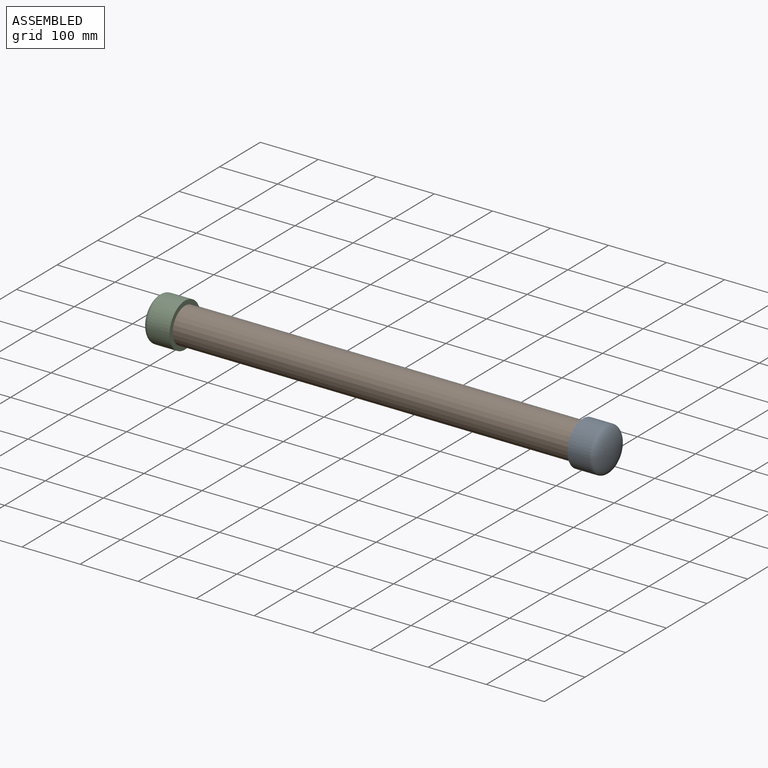
[diagram: assembled view]
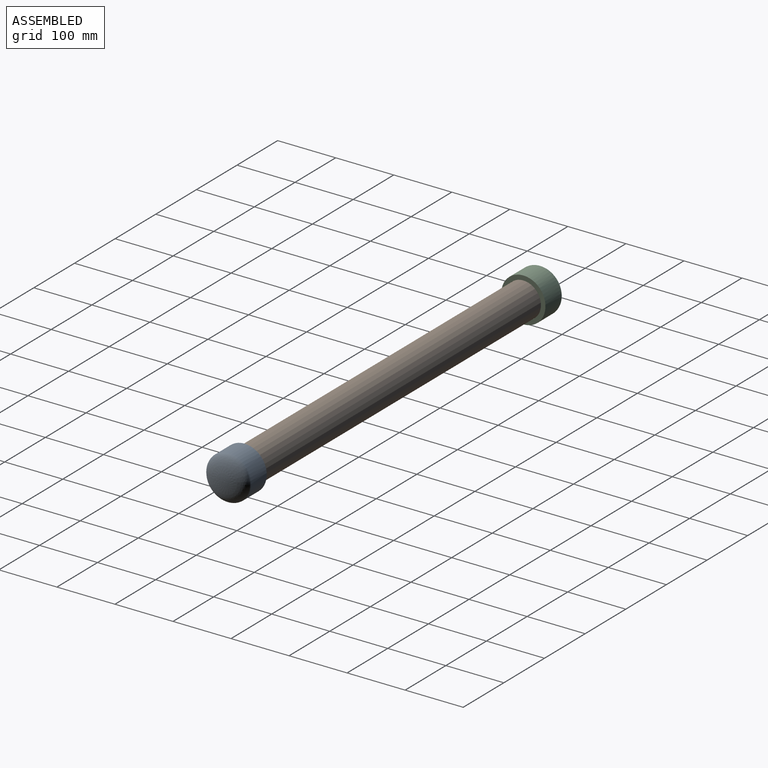
[diagram: assembled view, second angle]
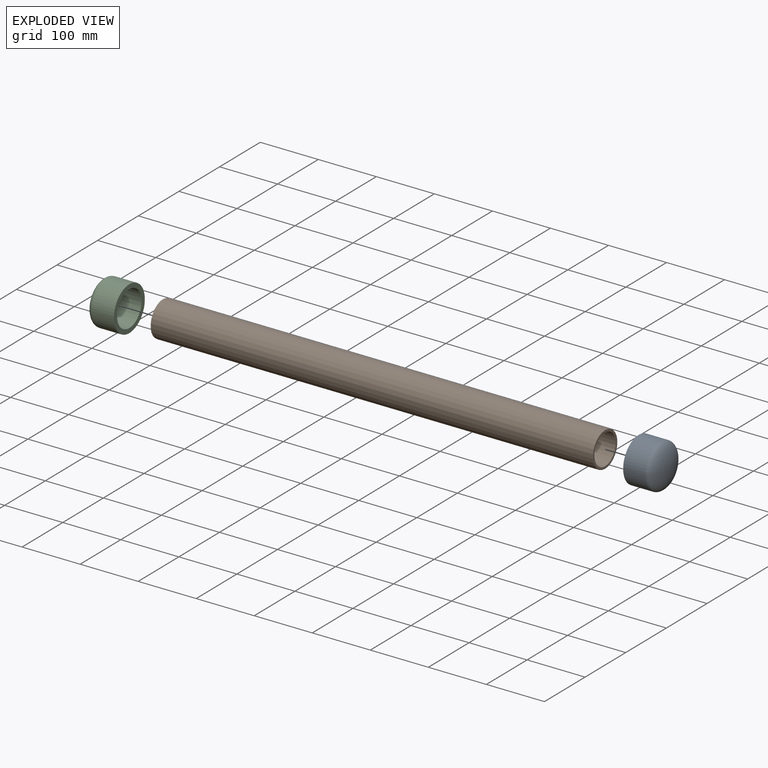
[diagram: exploded view]
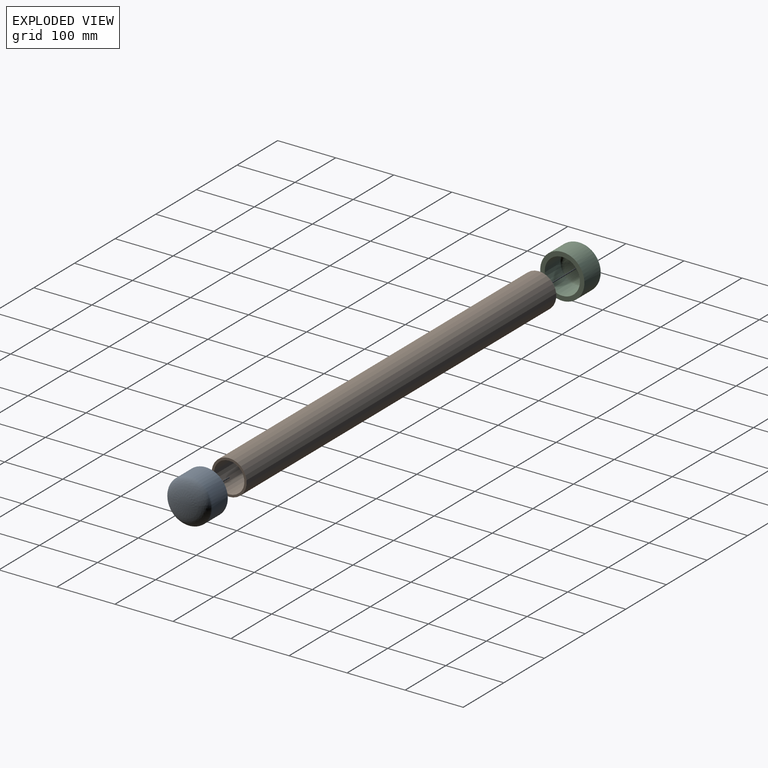
[diagram: exploded view, second angle]
ASSEMBLY  parts=3 mates=2
PART A: 7 faces, bbox 52.8x76.2x76.2 mm
  f0: revolved ~60.17x30.09mm, area 1580.4mm2, adj f3,f5
  f1: revolved ~76.2x38.1mm, area 2873mm2, adj f2,f4
  f2: cylinder r=38.1mm len=76.2mm, axis (-1,0,0), area 9120.7mm2, adj f1,f4,f6
  f3: cone r=30.09mm half-angle=0.3deg, axis (-1,0,0), area 7229.8mm2, adj f0,f5,f6
  f4: revolved ~76.2x38.1mm, area 2873mm2, adj f1,f2
  f5: revolved ~60.17x30.09mm, area 1580.4mm2, adj f0,f3
  f6: plane 76.2x76.2mm, normal (-1,0,0), area 1673.3mm2, adj f2,f3
PART B: 4 faces, bbox 762x60.3x60.3 mm
  f0: cylinder r=26.25mm len=762mm, axis (-1,0,0), area 125683.7mm2, adj f2,f3
  f1: cylinder r=30.16mm len=762mm, axis (-1,0,0), area 144411.6mm2, adj f2,f3
  f2: plane 60.33x60.33mm, normal (1,0,0), area 693.2mm2, adj f0,f1
  f3: plane 60.33x60.33mm, normal (-1,0,0), area 693.2mm2, adj f0,f1
PART C: same geometry as A
PLACE A t=(563.54,50.91,-68.96)mm
PLACE B t=(-213.19,50.91,-68.96)mm fixed
PLACE C rot(axis=(0,1,0),180deg) t=(-227.92,50.91,-68.96)mm
MATE revolute B.f0 <-> C.f2  axis (-1,0,0) through (-213.19,50.91,-68.96)mm
MATE revolute B.f0 <-> A.f2  axis (1,0,0) through (548.81,50.91,-68.96)mm
